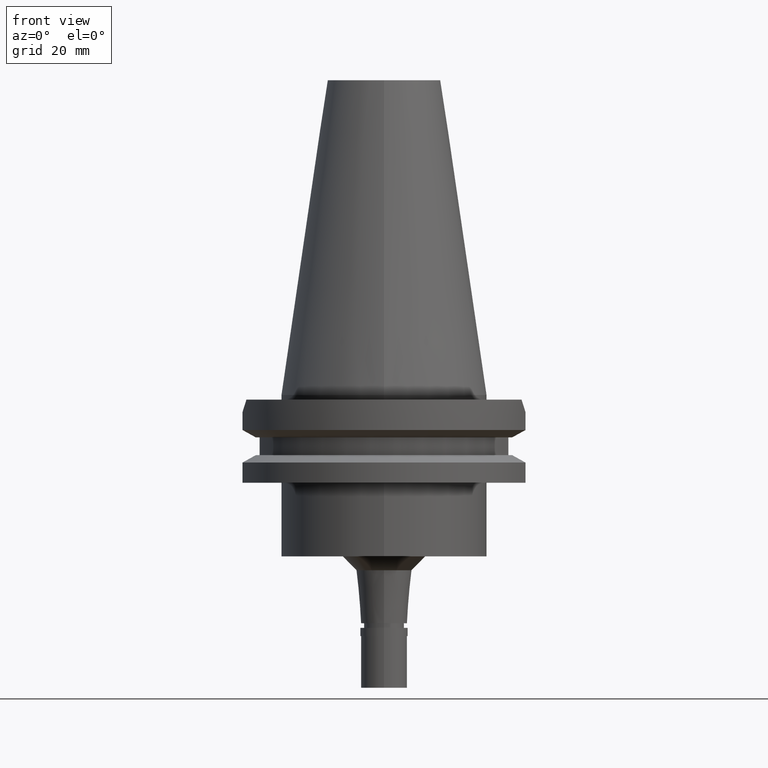
[diagram: clean part render]
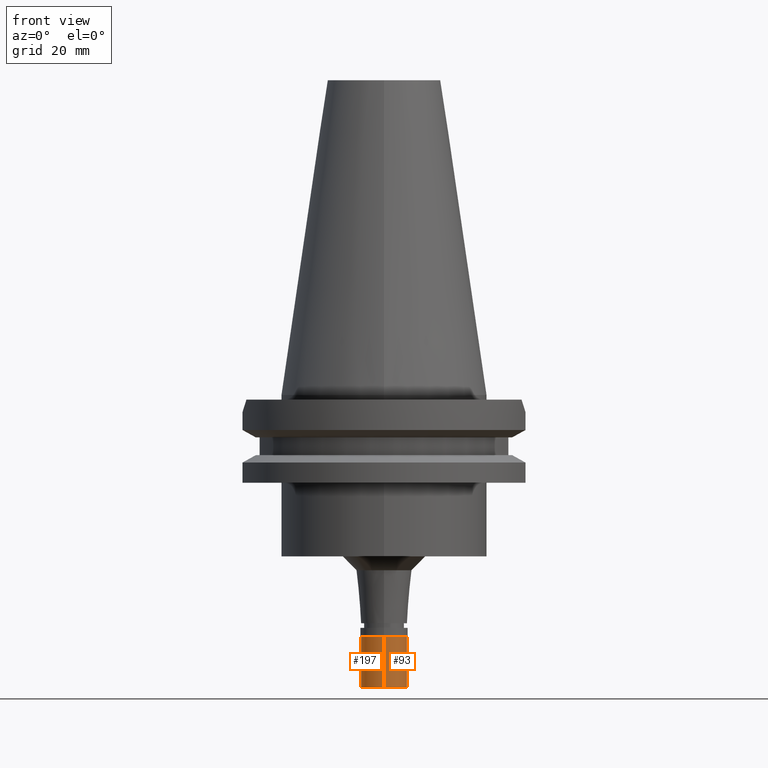
[diagram: same view with one multi-face feature highlighted, each face labeled with its STEP entity id]
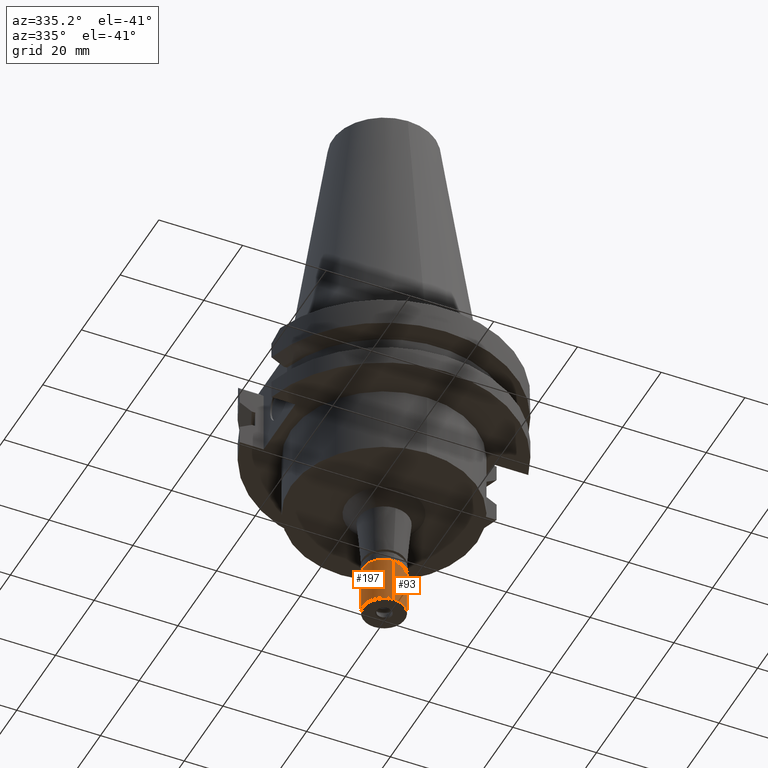
[diagram: same view with one multi-face feature highlighted, each face labeled with its STEP entity id]
A machine part, front view. The highlighted faces form ONE feature: a constant-radius fillet chain: 2 tangent blend faces with common blend radius 5 mm. The faces share edges in the B-rep.
A second angle (auxiliary view) of the same feature is appended — it is thin or edge-on in the first view.
Their STEP definitions:
[1] entity #93 (Cylinder):
#43 = DIRECTION ( 'NONE',  ( 0.0000000000000000000, 0.0000000000000000000, -1.000000000000000000 ) ) ;
#93 = ADVANCED_FACE ( 'NONE', ( #270 ), #1943, .T. ) ;
#270 = FACE_OUTER_BOUND ( 'NONE', #3118, .T. ) ;
#318 = DIRECTION ( 'NONE',  ( 0.0000000000000000000, -1.000000000000000000, 0.0000000000000000000 ) ) ;
#435 = LINE ( 'NONE', #2207, #2005 ) ;
#586 = VERTEX_POINT ( 'NONE', #1445 ) ;
#706 = AXIS2_PLACEMENT_3D ( 'NONE', #1755, #1020, #1206 ) ;
#872 = VECTOR ( 'NONE', #1629, 1000.000000000000000 ) ;
#994 = CARTESIAN_POINT ( 'NONE',  ( 0.0000000000000000000, 0.0000000000000000000, -1.800000000000000044 ) ) ;
#1020 = DIRECTION ( 'NONE',  ( 0.0000000000000000000, 0.0000000000000000000, 1.000000000000000000 ) ) ;
#1124 = LINE ( 'NONE', #2607, #872 ) ;
#1205 = CIRCLE ( 'NONE', #1615, 5.000000000000000000 ) ;
#1206 = DIRECTION ( 'NONE',  ( 0.0000000000000000000, 1.000000000000000000, 0.0000000000000000000 ) ) ;
#1323 = EDGE_CURVE ( 'NONE', #2635, #586, #435, .T. ) ;
#1445 = CARTESIAN_POINT ( 'NONE',  ( 0.0000000000000000000, 5.000000000000000000, -13.00000000000000000 ) ) ;
#1516 = EDGE_CURVE ( 'NONE', #1794, #586, #1532, .T. ) ;
#1532 = CIRCLE ( 'NONE', #3091, 5.000000000000000000 ) ;
#1547 = CARTESIAN_POINT ( 'NONE',  ( 0.0000000000000000000, -5.000000000000000000, -1.800000000000000044 ) ) ;
#1615 = AXIS2_PLACEMENT_3D ( 'NONE', #994, #43, #2025 ) ;
#1617 = VERTEX_POINT ( 'NONE', #1547 ) ;
#1629 = DIRECTION ( 'NONE',  ( 0.0000000000000000000, 0.0000000000000000000, -1.000000000000000000 ) ) ;
#1644 = ORIENTED_EDGE ( 'NONE', *, *, #1323, .F. ) ;
#1647 = DIRECTION ( 'NONE',  ( 0.0000000000000000000, 0.0000000000000000000, -1.000000000000000000 ) ) ;
#1693 = EDGE_CURVE ( 'NONE', #2635, #1617, #1205, .T. ) ;
#1755 = CARTESIAN_POINT ( 'NONE',  ( 0.0000000000000000000, 0.0000000000000000000, -13.65000000000000036 ) ) ;
#1794 = VERTEX_POINT ( 'NONE', #2051 ) ;
#1797 = CARTESIAN_POINT ( 'NONE',  ( 0.0000000000000000000, 0.0000000000000000000, -13.00000000000000000 ) ) ;
#1824 = EDGE_CURVE ( 'NONE', #1617, #1794, #1124, .T. ) ;
#1896 = ORIENTED_EDGE ( 'NONE', *, *, #1824, .T. ) ;
#1943 = CYLINDRICAL_SURFACE ( 'NONE', #706, 5.000000000000000000 ) ;
#2005 = VECTOR ( 'NONE', #1647, 1000.000000000000000 ) ;
#2025 = DIRECTION ( 'NONE',  ( 0.0000000000000000000, 1.000000000000000000, 0.0000000000000000000 ) ) ;
#2051 = CARTESIAN_POINT ( 'NONE',  ( 0.0000000000000000000, -5.000000000000000000, -13.00000000000000000 ) ) ;
#2086 = ORIENTED_EDGE ( 'NONE', *, *, #1693, .T. ) ;
#2207 = CARTESIAN_POINT ( 'NONE',  ( 0.0000000000000000000, 5.000000000000000000, -1.800000000000000044 ) ) ;
#2306 = ORIENTED_EDGE ( 'NONE', *, *, #1516, .T. ) ;
#2487 = DIRECTION ( 'NONE',  ( 0.0000000000000000000, 0.0000000000000000000, 1.000000000000000000 ) ) ;
#2607 = CARTESIAN_POINT ( 'NONE',  ( 0.0000000000000000000, -5.000000000000000000, -1.800000000000000044 ) ) ;
#2635 = VERTEX_POINT ( 'NONE', #2738 ) ;
#2738 = CARTESIAN_POINT ( 'NONE',  ( 0.0000000000000000000, 5.000000000000000000, -1.800000000000000044 ) ) ;
#3091 = AXIS2_PLACEMENT_3D ( 'NONE', #1797, #2487, #318 ) ;
#3118 = EDGE_LOOP ( 'NONE', ( #2086, #1896, #2306, #1644 ) ) ;
[2] entity #197 (Cylinder):
#50 = CARTESIAN_POINT ( 'NONE',  ( 0.0000000000000000000, 0.0000000000000000000, -13.65000000000000036 ) ) ;
#143 = AXIS2_PLACEMENT_3D ( 'NONE', #2110, #2570, #604 ) ;
#197 = ADVANCED_FACE ( 'NONE', ( #2948 ), #2257, .T. ) ;
#435 = LINE ( 'NONE', #2207, #2005 ) ;
#447 = ORIENTED_EDGE ( 'NONE', *, *, #2665, .T. ) ;
#496 = DIRECTION ( 'NONE',  ( 0.0000000000000000000, 1.000000000000000000, 0.0000000000000000000 ) ) ;
#586 = VERTEX_POINT ( 'NONE', #1445 ) ;
#604 = DIRECTION ( 'NONE',  ( 0.0000000000000000000, 1.000000000000000000, 0.0000000000000000000 ) ) ;
#682 = AXIS2_PLACEMENT_3D ( 'NONE', #2546, #829, #1774 ) ;
#724 = ORIENTED_EDGE ( 'NONE', *, *, #1869, .T. ) ;
#829 = DIRECTION ( 'NONE',  ( 0.0000000000000000000, 0.0000000000000000000, -1.000000000000000000 ) ) ;
#872 = VECTOR ( 'NONE', #1629, 1000.000000000000000 ) ;
#1095 = ORIENTED_EDGE ( 'NONE', *, *, #1323, .T. ) ;
#1124 = LINE ( 'NONE', #2607, #872 ) ;
#1323 = EDGE_CURVE ( 'NONE', #2635, #586, #435, .T. ) ;
#1386 = ORIENTED_EDGE ( 'NONE', *, *, #1824, .F. ) ;
#1445 = CARTESIAN_POINT ( 'NONE',  ( 0.0000000000000000000, 5.000000000000000000, -13.00000000000000000 ) ) ;
#1534 = CIRCLE ( 'NONE', #143, 5.000000000000000000 ) ;
#1547 = CARTESIAN_POINT ( 'NONE',  ( 0.0000000000000000000, -5.000000000000000000, -1.800000000000000044 ) ) ;
#1617 = VERTEX_POINT ( 'NONE', #1547 ) ;
#1629 = DIRECTION ( 'NONE',  ( 0.0000000000000000000, 0.0000000000000000000, -1.000000000000000000 ) ) ;
#1647 = DIRECTION ( 'NONE',  ( 0.0000000000000000000, 0.0000000000000000000, -1.000000000000000000 ) ) ;
#1774 = DIRECTION ( 'NONE',  ( 0.0000000000000000000, -1.000000000000000000, 0.0000000000000000000 ) ) ;
#1794 = VERTEX_POINT ( 'NONE', #2051 ) ;
#1824 = EDGE_CURVE ( 'NONE', #1617, #1794, #1124, .T. ) ;
#1869 = EDGE_CURVE ( 'NONE', #586, #1794, #1534, .T. ) ;
#2005 = VECTOR ( 'NONE', #1647, 1000.000000000000000 ) ;
#2051 = CARTESIAN_POINT ( 'NONE',  ( 0.0000000000000000000, -5.000000000000000000, -13.00000000000000000 ) ) ;
#2110 = CARTESIAN_POINT ( 'NONE',  ( 0.0000000000000000000, 0.0000000000000000000, -13.00000000000000000 ) ) ;
#2207 = CARTESIAN_POINT ( 'NONE',  ( 0.0000000000000000000, 5.000000000000000000, -1.800000000000000044 ) ) ;
#2257 = CYLINDRICAL_SURFACE ( 'NONE', #3110, 5.000000000000000000 ) ;
#2283 = CIRCLE ( 'NONE', #682, 5.000000000000000000 ) ;
#2546 = CARTESIAN_POINT ( 'NONE',  ( 0.0000000000000000000, 0.0000000000000000000, -1.800000000000000044 ) ) ;
#2570 = DIRECTION ( 'NONE',  ( 0.0000000000000000000, 0.0000000000000000000, 1.000000000000000000 ) ) ;
#2607 = CARTESIAN_POINT ( 'NONE',  ( 0.0000000000000000000, -5.000000000000000000, -1.800000000000000044 ) ) ;
#2635 = VERTEX_POINT ( 'NONE', #2738 ) ;
#2665 = EDGE_CURVE ( 'NONE', #1617, #2635, #2283, .T. ) ;
#2699 = DIRECTION ( 'NONE',  ( 0.0000000000000000000, 0.0000000000000000000, 1.000000000000000000 ) ) ;
#2738 = CARTESIAN_POINT ( 'NONE',  ( 0.0000000000000000000, 5.000000000000000000, -1.800000000000000044 ) ) ;
#2752 = EDGE_LOOP ( 'NONE', ( #724, #1386, #447, #1095 ) ) ;
#2948 = FACE_OUTER_BOUND ( 'NONE', #2752, .T. ) ;
#3110 = AXIS2_PLACEMENT_3D ( 'NONE', #50, #2699, #496 ) ;